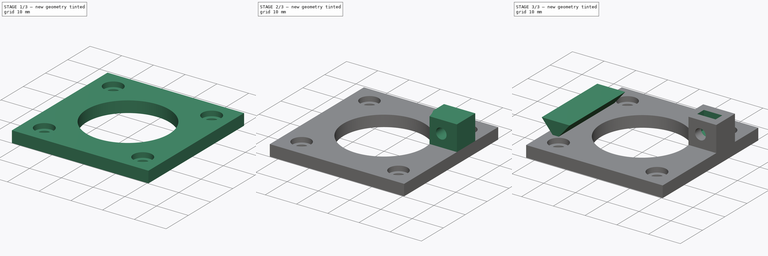
[diagram: build sequence overview — one tinted view per stage of 3, left to right]
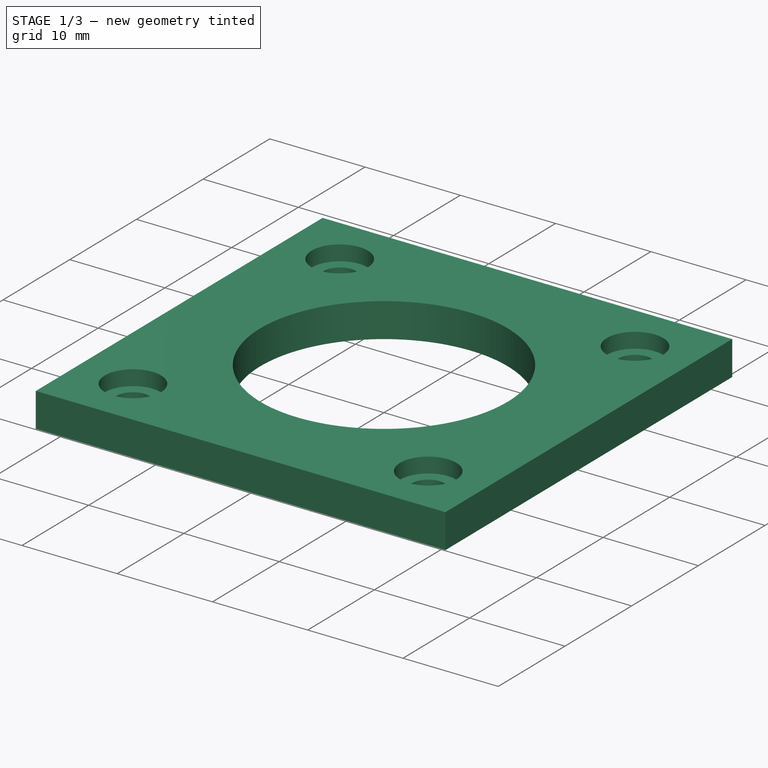
[diagram: stage 1 of 3 — iso view after this stage's code; geometry added in this stage tinted green]
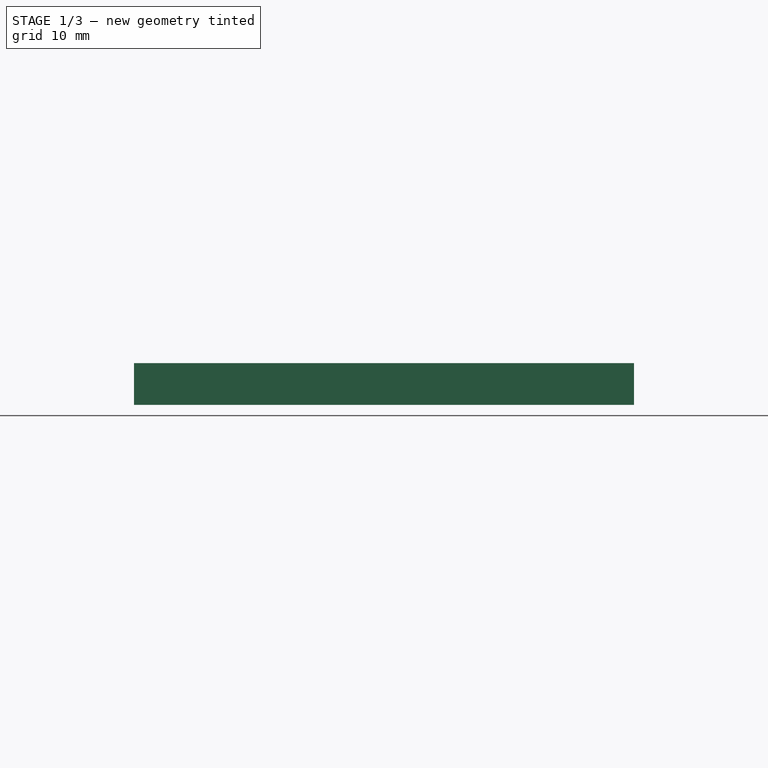
[diagram: stage 1 of 3 — front view after this stage's code; geometry added in this stage tinted green]
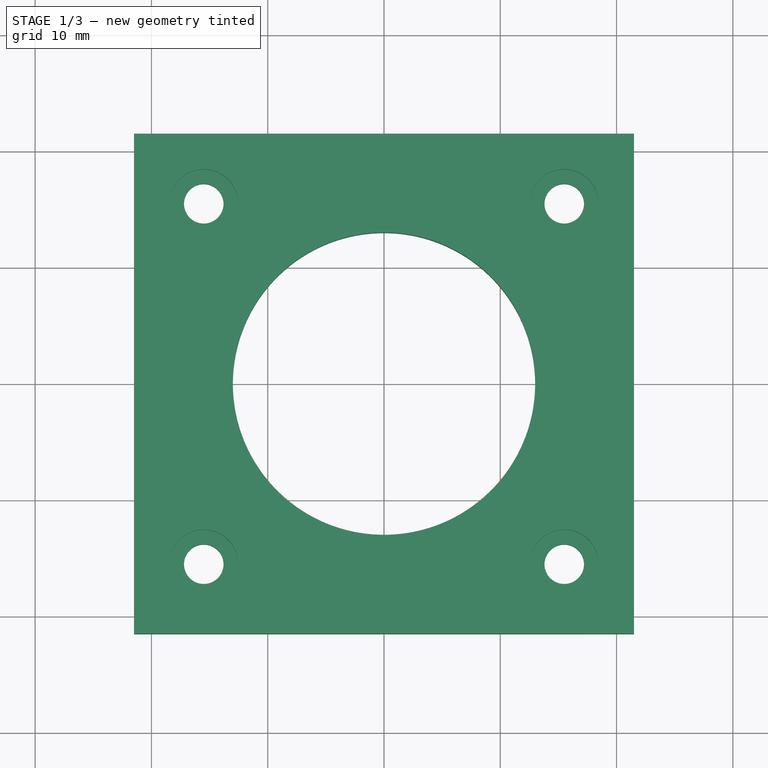
[diagram: stage 1 of 3 — top view after this stage's code; geometry added in this stage tinted green]
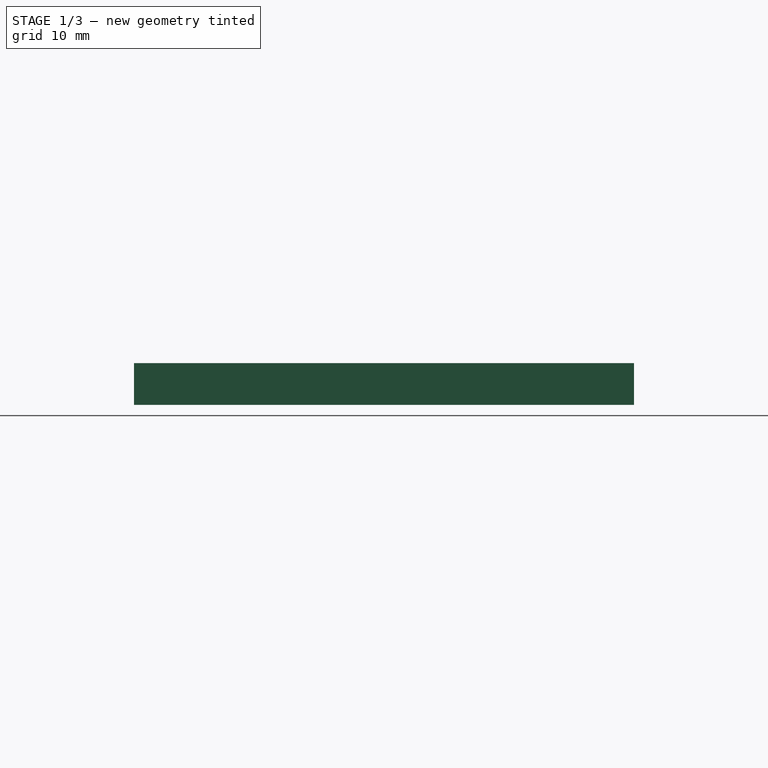
[diagram: stage 1 of 3 — right view after this stage's code; geometry added in this stage tinted green]
FCSTD DOCUMENT  (FreeCAD 0.19R24276 (Git))
Label: Art56MotorHolderA
License: All rights reserved
LicenseURL: http://en.wikipedia.org/wiki/All_rights_reserved
objects: Sketcher::SketchObject×6, PartDesign::Line×5, PartDesign::Pad×3, PartDesign::Pocket×3, PartDesign::CoordinateSystem×2, Spreadsheet::Sheet×1, PartDesign::Plane×1, PartDesign::Body×1
note: 27 computed .brp shape members not serialized (recipe doc carries the construction recipe); baked Part::Feature solids carry a one-line shape summary decoded from their .brp

FEATURE [Sketcher::SketchObject] Sketch
  FullyConstrained = true
  MapMode = 5
  Support = -> [XY_Plane]
  expr: Constraints[29] = Spreadsheet.M3BoltBodyRadius
  sketch-geometry (13):
    g0: LineSegment StartX=-21.5 StartY=21.5 StartZ=0 EndX=21.5 EndY=21.5 EndZ=0
    g1: LineSegment StartX=21.5 StartY=21.5 StartZ=0 EndX=21.5 EndY=-21.5 EndZ=0
    g2: LineSegment StartX=21.5 StartY=-21.5 StartZ=0 EndX=-21.5 EndY=-21.5 EndZ=0
    g3: LineSegment StartX=-21.5 StartY=-21.5 StartZ=0 EndX=-21.5 EndY=21.5 EndZ=0
    g4: Circle CenterX=0 CenterY=0 CenterZ=0 NormalX=0 NormalY=0 NormalZ=1 AngleXU=0 Radius=13
    g5: LineSegment StartX=-15.5 StartY=15.5 StartZ=0 EndX=15.5 EndY=15.5 EndZ=0
    g6: LineSegment StartX=15.5 StartY=15.5 StartZ=0 EndX=15.5 EndY=-15.5 EndZ=0
    g7: LineSegment StartX=15.5 StartY=-15.5 StartZ=0 EndX=-15.5 EndY=-15.5 EndZ=0
    g8: LineSegment StartX=-15.5 StartY=-15.5 StartZ=0 EndX=-15.5 EndY=15.5 EndZ=0
    g9: Circle CenterX=-15.5 CenterY=15.5 CenterZ=0 NormalX=0 NormalY=0 NormalZ=1 AngleXU=0 Radius=1.7
    g10: Circle CenterX=15.5 CenterY=15.5 CenterZ=0 NormalX=0 NormalY=0 NormalZ=1 AngleXU=0 Radius=1.7
    g11: Circle CenterX=15.5 CenterY=-15.5 CenterZ=0 NormalX=0 NormalY=0 NormalZ=1 AngleXU=0 Radius=1.7
    g12: Circle CenterX=-15.5 CenterY=-15.5 CenterZ=0 NormalX=0 NormalY=0 NormalZ=1 AngleXU=0 Radius=1.7
  constraints (30):
    c: Coincident(g0,g1)
    c: Coincident(g1,g2)
    c: Coincident(g2,g3)
    c: Coincident(g3,g0)
    c: Horizontal(g0)
    c: Vertical(g3)
    c: Symmetric(g2,g1,g-2)
    c: Equal(g2,g1)
    c: Symmetric(g1,g0,g-1)
    c: DistanceY(g1,g1) = 43
    c: Coincident(g4,g-1)
    c: Radius(g4) = 13
    c: Coincident(g5,g6)
    c: Coincident(g6,g7)
    c: Coincident(g7,g8)
    c: Coincident(g8,g5)
    c: Horizontal(g5)
    c: Vertical(g6)
    c: Symmetric(g6,g7,g-2)
    c: Symmetric(g7,g5,g-1)
    c: Equal(g5,g8)
    c: DistanceX(g5,g5) = 31
    c: Coincident(g9,g5)
    c: Coincident(g10,g5)
    c: Coincident(g11,g6)
    c: Coincident(g12,g7)
    c: Equal(g10,g9)
    c: Equal(g9,g12)
    c: Equal(g12,g11)
    c: Radius(g9) = 1.7
FEATURE [Spreadsheet::Sheet] Spreadsheet
  cells = A2=M3BoltBodyRadius; B2(M3BoltBodyRadius)=1.7; A3=M3BoltHeadRadius; B3(M3BoltHeadRadius)=2.95; A4=M3NutCircumradius; B4(M3NutCircumradius)=3.35; A5=M3NutThickness; B5(M3NutThickness)=3; A6=Bearing655ZZBodyRadius; B6(Bearing655ZZBodyRadius)=8.199999999999999; A7=MagnetRadius; B7(MagnetRadius)=4.2; A8=MagnetThickness; B8(MagnetThickness)=1.1; A9=M2BoltBodyRadius; B9(M2BoltBodyRadius)=1.2; A10=M2BoltHeadRadius; B10(M2BoltHeadRadius)=2.1; A11=M5BoltBodyRadius; B11(M5BoltBodyRadius)=2.6
FEATURE [PartDesign::Pad] Pad
  Direction = (1,1,1)
  Length = 3.6
  Length2 = 100
  Profile = -> Sketch
  Refine = true
  Type = 0
FEATURE [Sketcher::SketchObject] Sketch001
  ExternalGeometry = -> [Pad]
  FullyConstrained = true
  MapMode = 5
  Placement = pos=(0,0,3.6) rot=(0,0,1;0rad)
  Support = -> [Pad]
  expr: Constraints[7] = Spreadsheet.M3BoltHeadRadius
  sketch-geometry (4):
    g0: Circle CenterX=15.5 CenterY=15.5 CenterZ=0 NormalX=0 NormalY=0 NormalZ=1 AngleXU=0 Radius=2.95
    g1: Circle CenterX=-15.5 CenterY=15.5 CenterZ=0 NormalX=0 NormalY=0 NormalZ=1 AngleXU=0 Radius=2.95
    g2: Circle CenterX=-15.5 CenterY=-15.5 CenterZ=0 NormalX=0 NormalY=0 NormalZ=1 AngleXU=0 Radius=2.95
    g3: Circle CenterX=15.5 CenterY=-15.5 CenterZ=0 NormalX=0 NormalY=0 NormalZ=1 AngleXU=0 Radius=2.95
  constraints (8):
    c: Coincident(g0,g-3)
    c: Coincident(g1,g-6)
    c: Coincident(g2,g-5)
    c: Coincident(g3,g-4)
    c: Equal(g3,g2)
    c: Equal(g2,g1)
    c: Equal(g1,g0)
    c: Radius(g0) = 2.95
FEATURE [PartDesign::Pocket] Pocket
  BaseFeature = -> Pad
  Length = 1.6
  Length2 = 100
  Profile = -> Sketch001
  Refine = true
  Type = 0
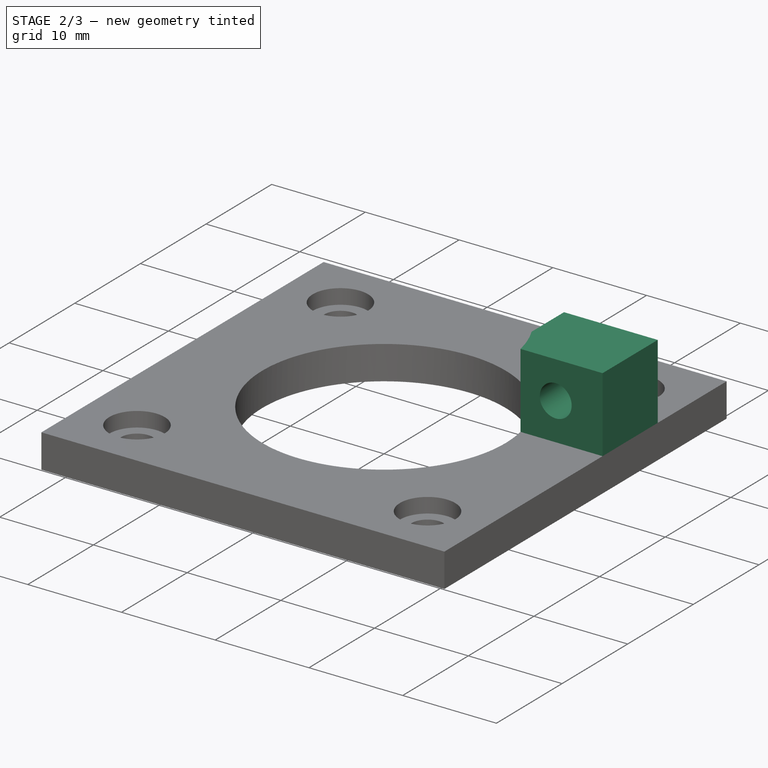
[diagram: stage 2 of 3 — iso view after this stage's code; geometry added in this stage tinted green]
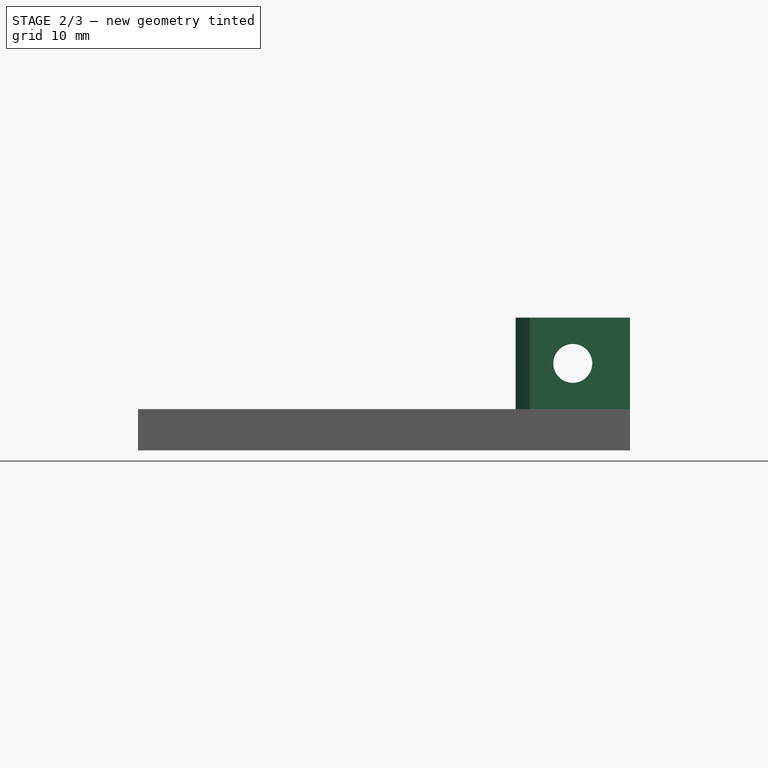
[diagram: stage 2 of 3 — front view after this stage's code; geometry added in this stage tinted green]
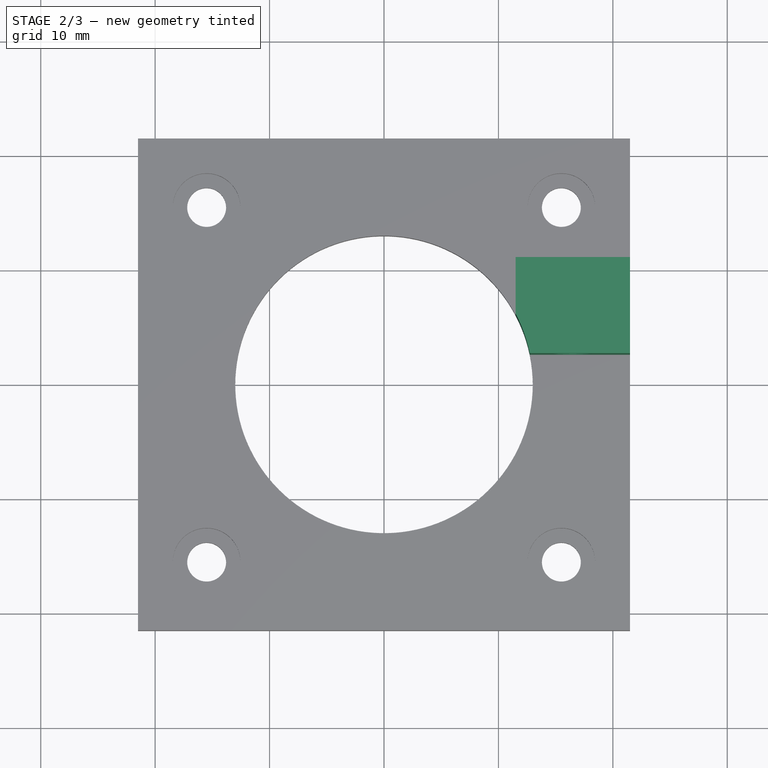
[diagram: stage 2 of 3 — top view after this stage's code; geometry added in this stage tinted green]
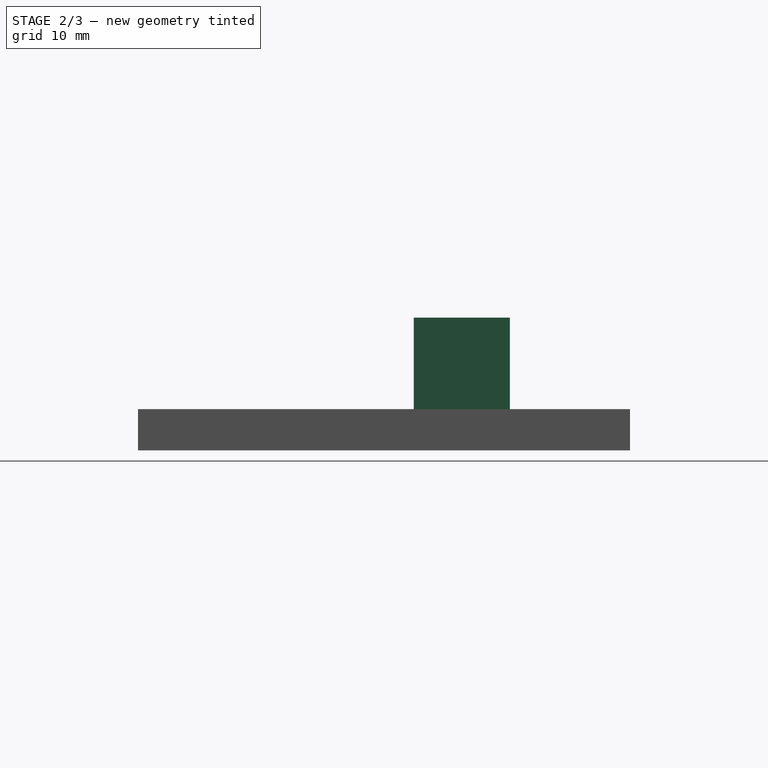
[diagram: stage 2 of 3 — right view after this stage's code; geometry added in this stage tinted green]
FEATURE [Sketcher::SketchObject] Sketch002
  ExternalGeometry = -> [Pocket]
  FullyConstrained = true
  MapMode = 5
  Placement = pos=(0,0,3.6) rot=(0,0,1;0rad)
  Support = -> [Pocket]
  sketch-geometry (5):
    g0: ArcOfCircle CenterX=0 CenterY=0 CenterZ=0 NormalX=0 NormalY=0 NormalZ=1 AngleXU=0 Radius=13 StartAngle=0.201358 EndAngle=0.485128
    g1: LineSegment StartX=21.5 StartY=11 StartZ=0 EndX=21.5 EndY=2.6 EndZ=0
    g2: LineSegment StartX=21.5 StartY=2.6 StartZ=0 EndX=12.7373 EndY=2.6 EndZ=0
    g3: LineSegment StartX=11.5 StartY=6.06218 StartZ=0 EndX=11.5 EndY=11 EndZ=0
    g4: LineSegment StartX=11.5 StartY=11 StartZ=0 EndX=21.5 EndY=11 EndZ=0
  constraints (15):
    c: Coincident(g0,g-1)
    c: PointOnObject(g0,g-3)
    c: PointOnObject(g1,g-4)
    c: Coincident(g1,g2)
    c: Coincident(g2,g0)
    c: Horizontal(g2)
    c: Vertical(g1)
    c: DistanceY(g1,g1) = 8.4
    c: Vertical(g3)
    c: Coincident(g4,g3)
    c: Coincident(g4,g1)
    c: Horizontal(g4)
    c: Coincident(g0,g3)
    c: DistanceX(g0,g3) = 11.5
    c: DistanceY(g0,g3) = 11
FEATURE [PartDesign::Pad] Pad001
  BaseFeature = -> Pocket
  Direction = (1,1,1)
  Length = 8
  Length2 = 100
  Profile = -> Sketch002
  Refine = true
  Type = 0
FEATURE [Sketcher::SketchObject] Sketch003
  ExternalGeometry = -> [Pad001]
  FullyConstrained = true
  MapMode = 5
  Placement = pos=(0,2.6,0) rot=(1,0,0;1.5708rad)
  Support = -> [Pad001]
  expr: Constraints[2] = Spreadsheet.M3BoltBodyRadius
  sketch-geometry (1):
    g0: Circle CenterX=16.5 CenterY=7.6 CenterZ=0 NormalX=0 NormalY=0 NormalZ=1 AngleXU=0 Radius=1.7
  constraints (3):
    c: DistanceX(g0,g-3) = 5
    c: DistanceY(g-3,g0) = 4
    c: Radius(g0) = 1.7
FEATURE [PartDesign::Pocket] Pocket001
  BaseFeature = -> Pad001
  Length = 5
  Length2 = 100
  Profile = -> Sketch003
  Refine = true
  Type = 1
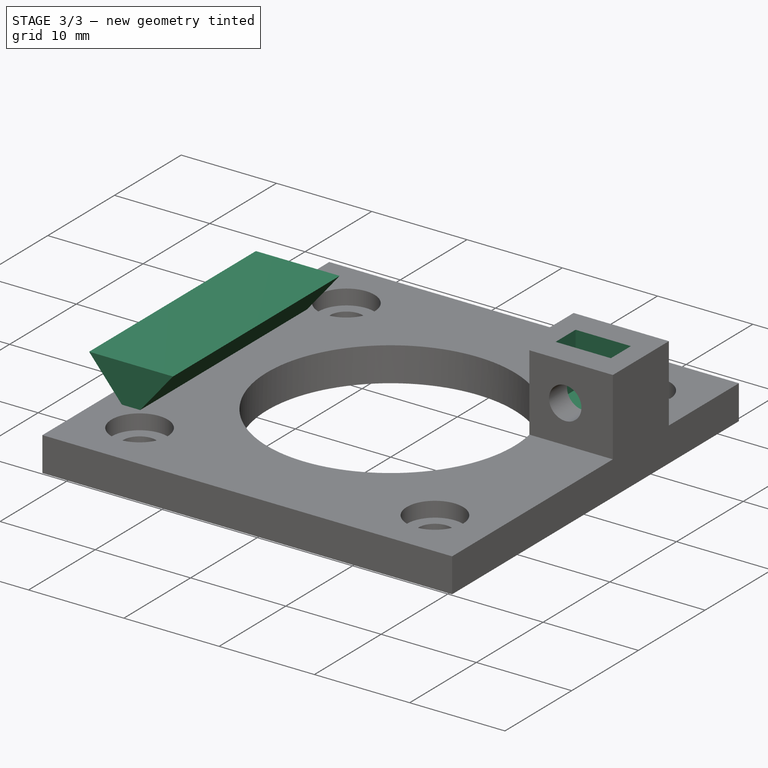
[diagram: stage 3 of 3 — iso view after this stage's code; geometry added in this stage tinted green]
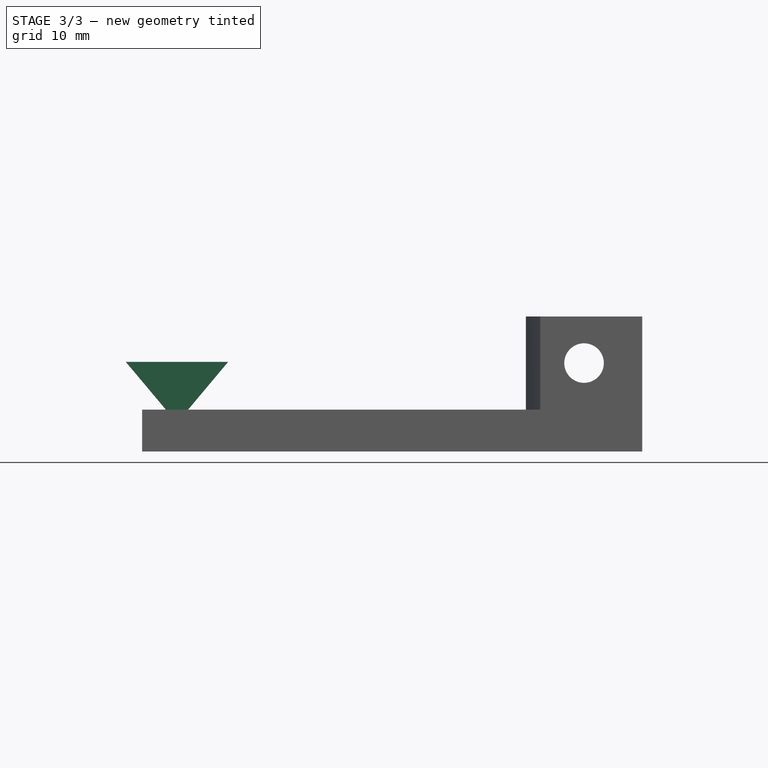
[diagram: stage 3 of 3 — front view after this stage's code; geometry added in this stage tinted green]
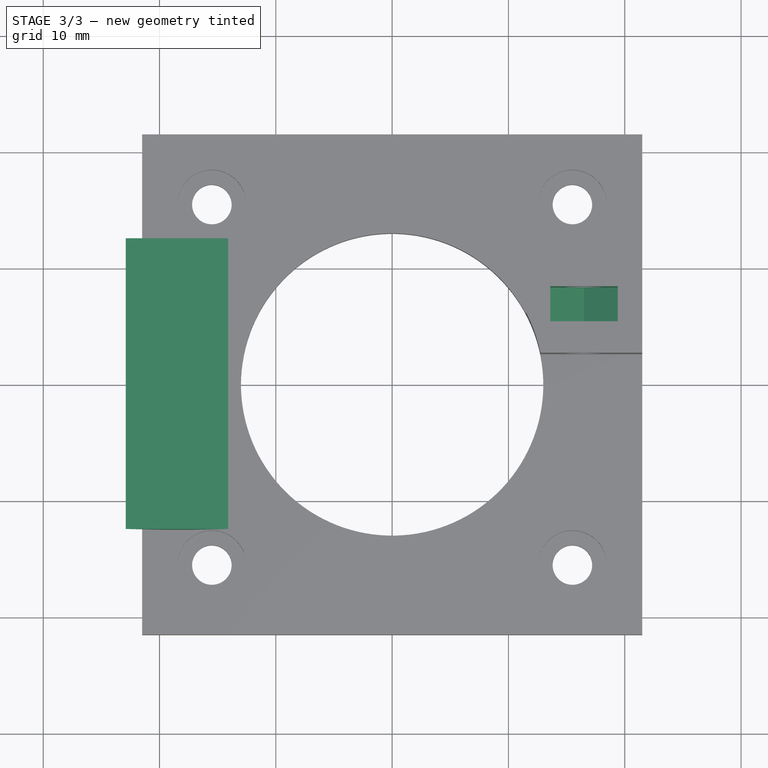
[diagram: stage 3 of 3 — top view after this stage's code; geometry added in this stage tinted green]
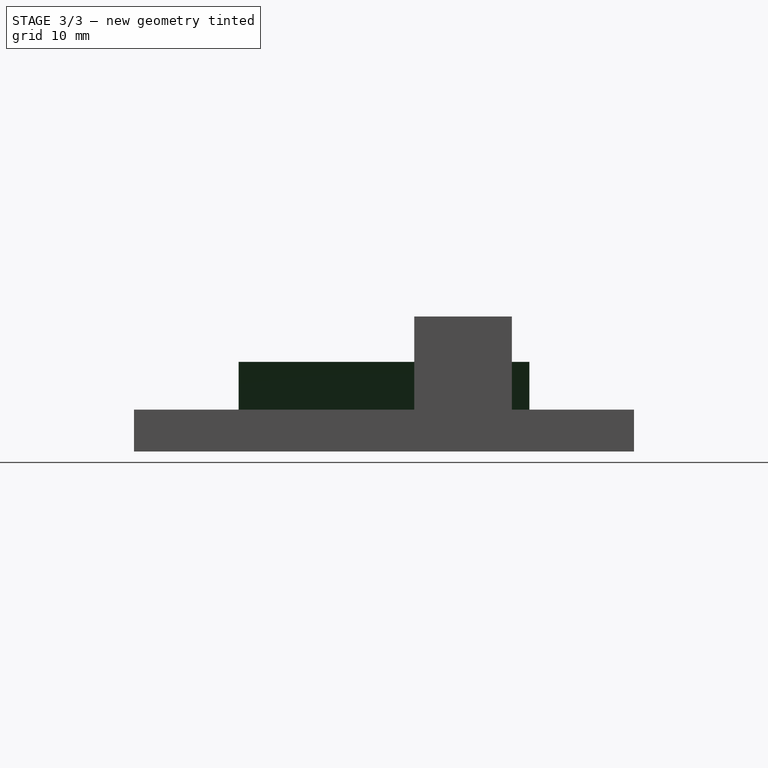
[diagram: stage 3 of 3 — right view after this stage's code; geometry added in this stage tinted green]
FEATURE [PartDesign::Plane] DatumPlane
  AttachmentOffset = pos=(0,0,-4.2) rot=(0,0,1;0rad)
  Length = 60
  MapMode = 5
  Placement = pos=(0,6.8,-9e-16) rot=(1,0,0;1.5708rad)
  ResizeMode = 0
  Support = -> [Pocket001]
  Width = 60
FEATURE [Sketcher::SketchObject] Sketch004
  ExternalGeometry = -> [Pocket001]
  FullyConstrained = true
  MapMode = 5
  Placement = pos=(0,6.8,-9e-16) rot=(1,0,0;1.5708rad)
  Support = -> [DatumPlane]
  expr: Constraints[19] = Spreadsheet.M3NutCircumradius
  sketch-geometry (10):
    g0: LineSegment StartX=16.5 StartY=10.95 StartZ=0 EndX=13.5988 EndY=9.275 EndZ=0
    g1: LineSegment StartX=13.5988 StartY=9.275 StartZ=0 EndX=13.5988 EndY=5.925 EndZ=0
    g2: LineSegment StartX=13.5988 StartY=5.925 StartZ=0 EndX=16.5 EndY=4.25 EndZ=0
    g3: LineSegment StartX=16.5 StartY=4.25 StartZ=0 EndX=19.4012 EndY=5.925 EndZ=0
    g4: LineSegment StartX=19.4012 StartY=5.925 StartZ=0 EndX=19.4012 EndY=9.275 EndZ=0
    g5: LineSegment StartX=19.4012 StartY=9.275 StartZ=0 EndX=16.5 EndY=10.95 EndZ=0
    g6: Circle CenterX=16.5 CenterY=7.6 CenterZ=0 NormalX=0 NormalY=0 NormalZ=1 AngleXU=0 Radius=3.35
    g7: LineSegment StartX=13.5988 StartY=5.925 StartZ=0 EndX=13.5988 EndY=15.925 EndZ=0
    g8: LineSegment StartX=13.5988 StartY=15.925 StartZ=0 EndX=19.4012 EndY=15.925 EndZ=0
    g9: LineSegment StartX=19.4012 StartY=15.925 StartZ=0 EndX=19.4012 EndY=5.925 EndZ=0
  constraints (24):
    c: Coincident(g0,g1)
    c: Coincident(g1,g2)
    c: Coincident(g2,g3)
    c: Coincident(g3,g4)
    c: Coincident(g4,g5)
    c: Coincident(g5,g0)
    c: Equal(g0, g1-g5) x5
    c: PointOnObject(g0,g6)
    c: PointOnObject(g1,g6)
    c: PointOnObject(g2,g6)
    c: PointOnObject(g3,g6)
    c: PointOnObject(g4,g6)
    c: PointOnObject(g5,g6)
    c: Coincident(g6,g-3)
    c: Vertical(g4)
    c: Radius(g6) = 3.35
    c: Coincident(g2,g7)
    c: Vertical(g7)
    c: Coincident(g7,g8)
    c: Horizontal(g8)
    c: Coincident(g8,g9)
    c: Coincident(g9,g3)
    c: Vertical(g9)
    c: DistanceY(g9,g9) = 10
FEATURE [PartDesign::Pocket] Pocket002
  BaseFeature = -> Pocket001
  Length = 3
  Length2 = 100
  Midplane = true
  Profile = -> Sketch004
  Refine = true
  Type = 0
  expr: Length = Spreadsheet.M3NutThickness
FEATURE [Sketcher::SketchObject] Sketch005
  ExternalGeometry = -> [Pocket002]
  FullyConstrained = true
  MapMode = 5
  Placement = pos=(0,0,0) rot=(1,0,0;1.5708rad)
  Support = -> [XZ_Plane]
  sketch-geometry (3):
    g0: LineSegment StartX=-22.9 StartY=7.7 StartZ=0 EndX=-14.1 EndY=7.7 EndZ=0
    g1: LineSegment StartX=-14.1 StartY=7.7 StartZ=0 EndX=-18.5 EndY=2.45628 EndZ=0
    g2: LineSegment StartX=-18.5 StartY=2.45628 StartZ=0 EndX=-22.9 EndY=7.7 EndZ=0
  constraints (9):
    c: Horizontal(g0)
    c: Coincident(g0,g1)
    c: Coincident(g2,g0)
    c: Angle(g2,g0) = 0.872665
    c: Angle(g0,g1) = 0.872665
    c: DistanceX(g0,g0) = 8.8
    c: Coincident(g1,g2)
    c: DistanceX(g1,g-1) = 18.5
    c: DistanceY(g-3,g0) = 4.1
FEATURE [PartDesign::Pad] Pad002
  BaseFeature = -> Pocket002
  Direction = (1,1,1)
  Length = 25
  Length2 = 100
  Midplane = true
  Profile = -> Sketch005
  Refine = true
  Type = 0
FEATURE [PartDesign::CoordinateSystem] LCS_Art56MotorHolderA
  AttacherType = Attacher::AttachEngine3D
  MapMode = 11
  Placement = pos=(16.5,11,7.6) rot=(0.57735,-0.57735,0.57735;2.0944rad)
  Support = -> [Pad002]
FEATURE [PartDesign::CoordinateSystem] LCS_Motor
  AttacherType = Attacher::AttachEngine3D
FEATURE [PartDesign::Line] HoleAxis_1
  AttacherType = Attacher::AttachEngineLine
  Length = 4.79083
  MapMode = 19
  Placement = pos=(15.5,15.5,2) rot=(-1,0,0;3.14159rad)
  ResizeMode = 1
  Support = -> [Pad002]
FEATURE [PartDesign::Line] HoleAxis_2
  AttacherType = Attacher::AttachEngineLine
  Length = 4.79083
  MapMode = 19
  Placement = pos=(15.5,-15.5,2) rot=(-1,0,0;3.14159rad)
  ResizeMode = 1
  Support = -> [Pad002]
FEATURE [PartDesign::Line] HoleAxis_3
  AttacherType = Attacher::AttachEngineLine
  Length = 4.79083
  MapMode = 19
  Placement = pos=(-15.5,-15.5,2) rot=(-1,0,0;3.14159rad)
  ResizeMode = 1
  Support = -> [Pad002]
FEATURE [PartDesign::Line] HoleAxis_4
  AttacherType = Attacher::AttachEngineLine
  Length = 4.79083
  MapMode = 19
  Placement = pos=(-15.5,15.5,2) rot=(-1,0,0;3.14159rad)
  ResizeMode = 1
  Support = -> [Pad002]
FEATURE [PartDesign::Line] HoleAxis_5
  AttacherType = Attacher::AttachEngineLine
  Length = 4.79083
  MapMode = 19
  Placement = pos=(16.5,8.3,7.6) rot=(1,0,0;1.5708rad)
  ResizeMode = 1
  Support = -> [Pad002]
FEATURE [PartDesign::Body] Body  label="Art56MotorHolderA"
  Group = -> [Sketch,Pad,Sketch001,Pocket,Sketch002,Pad001,Sketch003,Pocket001,DatumPlane,Sketch004,Pocket002,Sketch005,Pad002,LCS_Art56MotorHolderA,LCS_Motor,HoleAxis_1,HoleAxis_2,HoleAxis_3,HoleAxis_4,HoleAxis_5]
  Origin = -> Origin
  Tip = -> Pad002
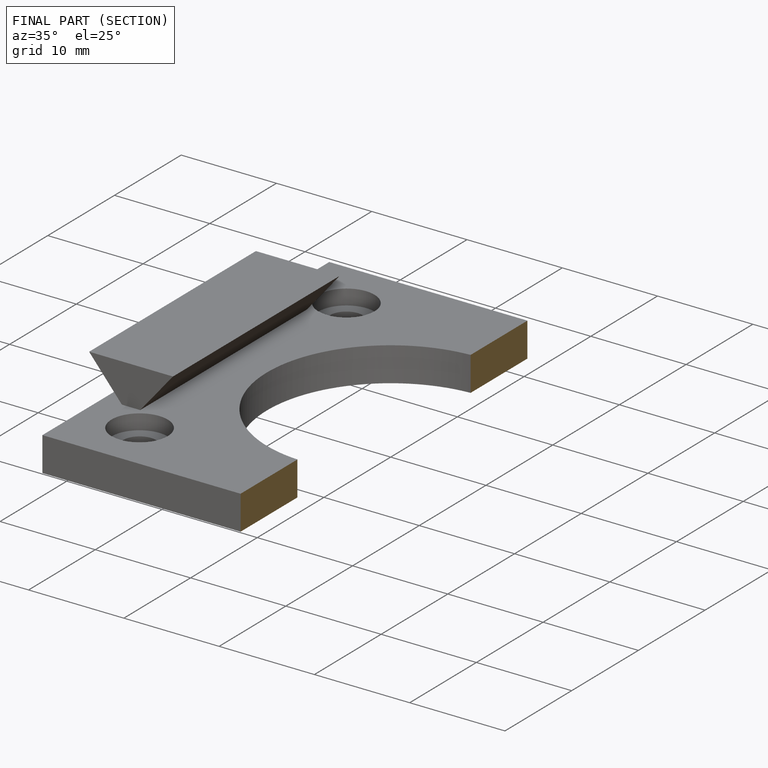
[diagram: finished part — half-section view (interior)]
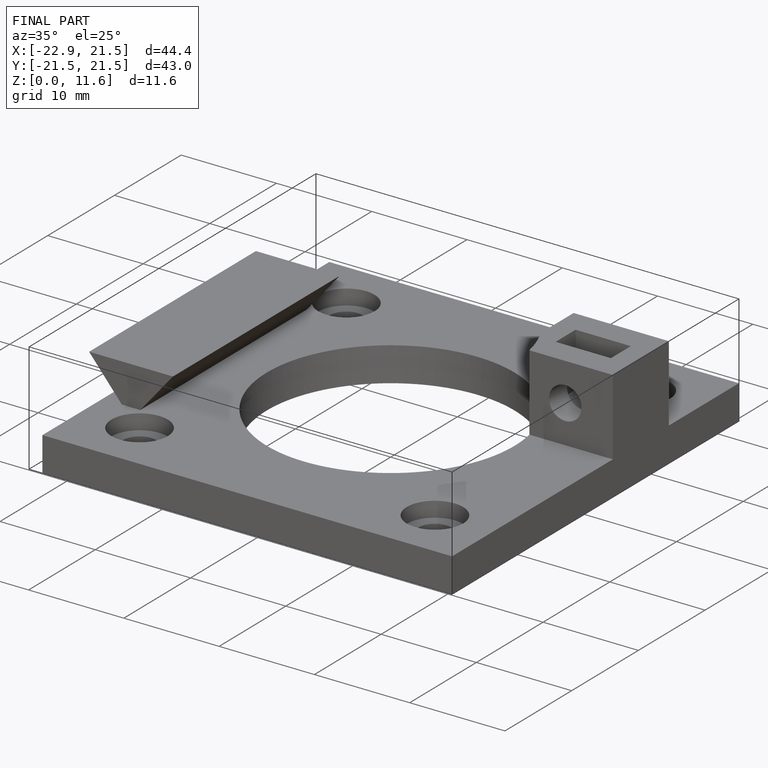
[diagram: finished part — iso view with bounding-box wireframe]
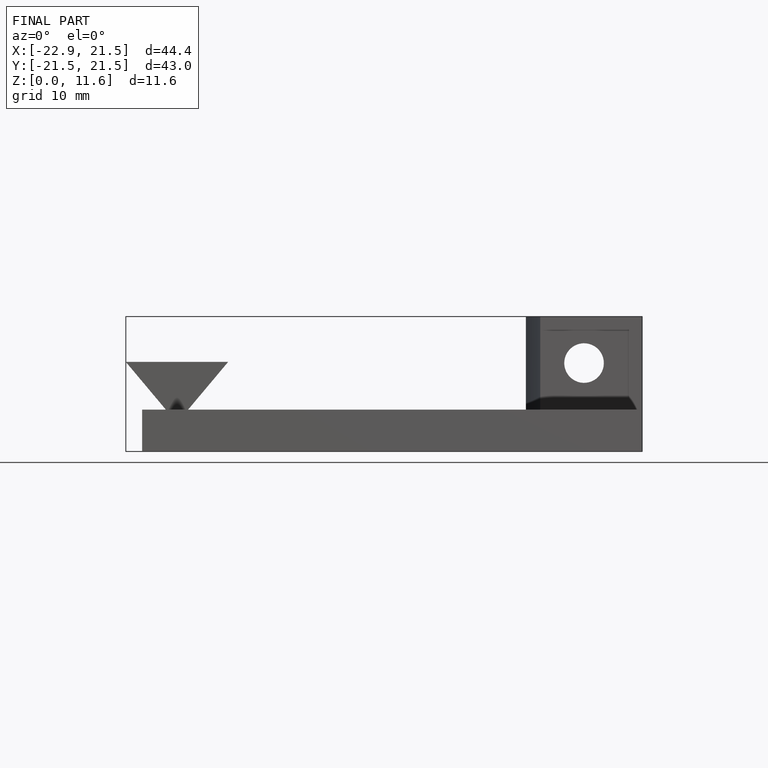
[diagram: finished part — front view with bounding-box wireframe]
